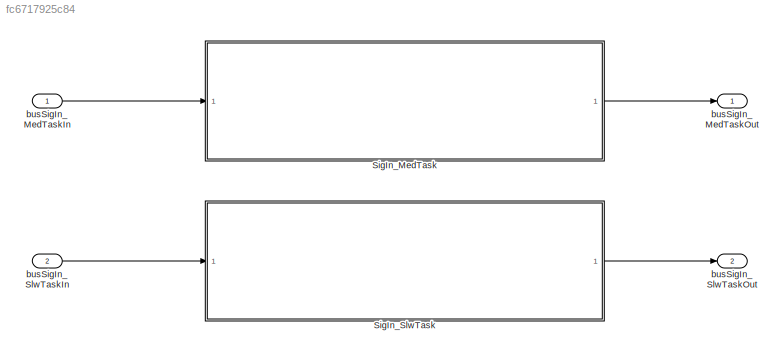
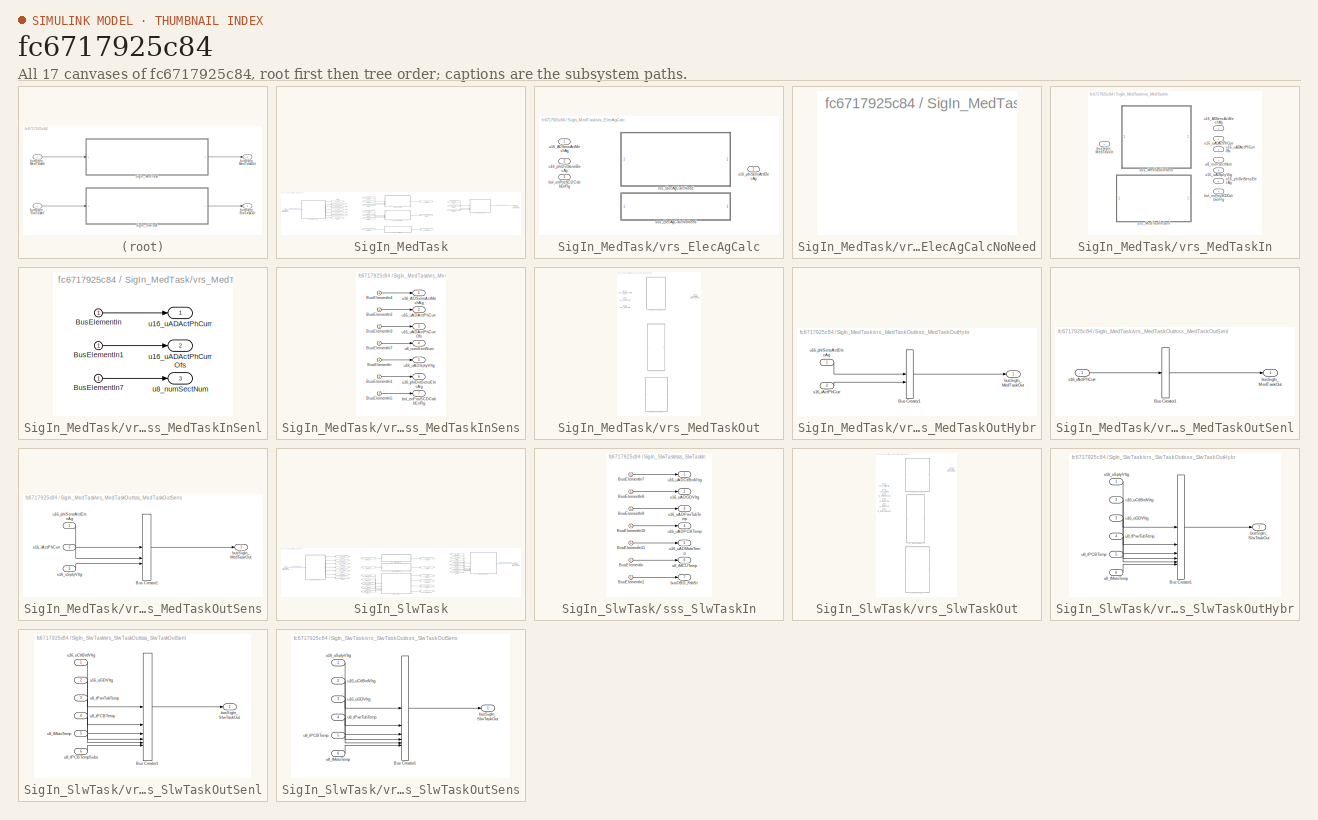
[diagram: thumbnail index - all 17 canvases of the model, root first then tree order]
MODEL slx_fc6717925c84
KIND model
CONFIG AbsTol = auto
CONFIG EnableMultiTasking = on
CONFIG FixedStep = 0.0005
CONFIG MaxStep = auto
CONFIG MinStep = auto
CONFIG RelTol = 1e-3
CONFIG SampleTimeConstraint = Unconstrained
CONFIG SolverName = FixedStepAuto
CONFIG StartTime = 0.0
CONFIG StopTime = 5
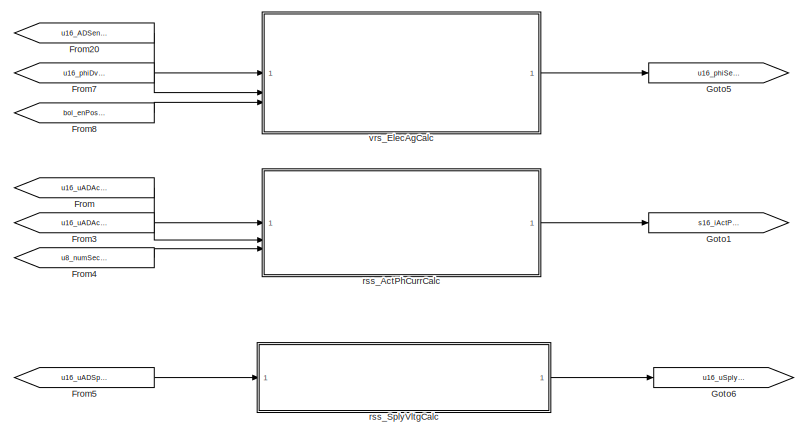
[diagram: SigIn_MedTask - part 1/3, center side, full height]
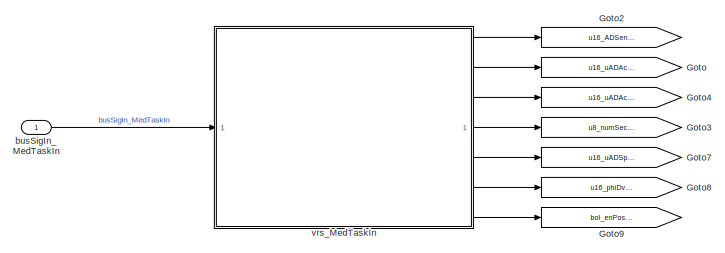
[diagram: SigIn_MedTask - part 2/3, middle left region]
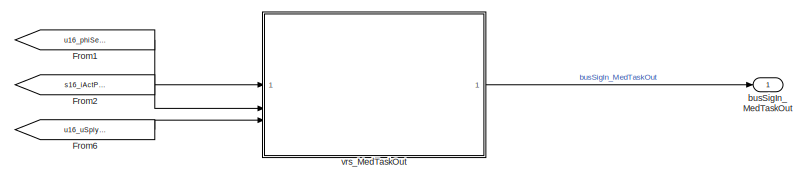
[diagram: SigIn_MedTask - part 3/3, top right region]
BLOCK [SubSystem] SigIn_MedTask
  RTWFcnName = SigIn_MedTask
  RTWFcnNameOpts = User specified
  RTWSystemCode = Nonreusable function
  TreatAsAtomicUnit = on
BLOCK [From] SigIn_MedTask/From
  GotoTag = u16_uADActPhCurr
BLOCK [From] SigIn_MedTask/From1
  GotoTag = u16_phiSensActElecAg
BLOCK [From] SigIn_MedTask/From2
  GotoTag = s16_iActPhCurr
BLOCK [From] SigIn_MedTask/From20
  GotoTag = u16_ADSensActMechAg
BLOCK [From] SigIn_MedTask/From3
  GotoTag = u16_uADActPhCurrOfs
BLOCK [From] SigIn_MedTask/From4
  GotoTag = u8_numSectNum
BLOCK [From] SigIn_MedTask/From5
  GotoTag = u16_uADSplyVltg
BLOCK [From] SigIn_MedTask/From6
  GotoTag = u16_uSplyVltg
BLOCK [From] SigIn_MedTask/From7
  GotoTag = u16_phiDvtSensElecAg
BLOCK [From] SigIn_MedTask/From8
  GotoTag = bol_enPosSCDCalibEnFlg
BLOCK [Goto] SigIn_MedTask/Goto
  GotoTag = u16_uADActPhCurr
BLOCK [Goto] SigIn_MedTask/Goto1
  GotoTag = s16_iActPhCurr
BLOCK [Goto] SigIn_MedTask/Goto2
  GotoTag = u16_ADSensActMechAg
BLOCK [Goto] SigIn_MedTask/Goto3
  GotoTag = u8_numSectNum
BLOCK [Goto] SigIn_MedTask/Goto4
  GotoTag = u16_uADActPhCurrOfs
BLOCK [Goto] SigIn_MedTask/Goto5
  GotoTag = u16_phiSensActElecAg
BLOCK [Goto] SigIn_MedTask/Goto6
  GotoTag = u16_uSplyVltg
BLOCK [Goto] SigIn_MedTask/Goto7
  GotoTag = u16_uADSplyVltg
BLOCK [Goto] SigIn_MedTask/Goto8
  GotoTag = u16_phiDvtSensElecAg
BLOCK [Goto] SigIn_MedTask/Goto9
  GotoTag = bol_enPosSCDCalibEnFlg
BLOCK [Inport] SigIn_MedTask/busSigIn_MedTaskIn
  SamplingMode = Sample based
  SignalType = real
BLOCK [Outport] SigIn_MedTask/busSigIn_MedTaskOut
  SamplingMode = Sample based
  SignalType = real
BLOCK [SubSystem] SigIn_MedTask/rss_ActPhCurrCalc
  ReferencedSubsystem = rss_ActPhCurrCalc
BLOCK [SubSystem] SigIn_MedTask/rss_SplyVltgCalc
  ReferencedSubsystem = rss_SplyVltgCalc
BLOCK [SubSystem] SigIn_MedTask/vrs_ElecAgCalc
  LabelModeActiveChoice = cstSensCtrlLbl
  Variant = on
  VariantControl = Choice
  VariantControlMode = label
BLOCK [Inport] SigIn_MedTask/vrs_ElecAgCalc/bol_enPosSCDCalibEnFlg
  Port = 3
BLOCK [SubSystem] SigIn_MedTask/vrs_ElecAgCalc/rss_ElecAgCalcNeed
  ReferencedSubsystem = rss_ElecAgCalcNeed
  VariantControl = cstSensCtrlLbl
BLOCK [SubSystem] SigIn_MedTask/vrs_ElecAgCalc/sss_ElecAgCalcNoNeed
  VariantControl = cstSenlCtrlLbl
BLOCK [Inport] SigIn_MedTask/vrs_ElecAgCalc/u16_ADSensActMechAg
BLOCK [Inport] SigIn_MedTask/vrs_ElecAgCalc/u16_phiDvtSensElecAg
  Port = 2
BLOCK [Outport] SigIn_MedTask/vrs_ElecAgCalc/u16_phiSensActElecAg
BLOCK [SubSystem] SigIn_MedTask/vrs_MedTaskIn
  LabelModeActiveChoice = cstSensCtrlLbl
  Variant = on
  VariantControl = cstSenlCtrlLbl
  VariantControlMode = label
BLOCK [Outport] SigIn_MedTask/vrs_MedTaskIn/bol_enPosSCDCalibEnFlg
  Port = 7
BLOCK [Inport] SigIn_MedTask/vrs_MedTaskIn/busSigIn_MedTaskIn
BLOCK [SubSystem] SigIn_MedTask/vrs_MedTaskIn/sss_MedTaskInSenl
  VariantControl = cstSenlCtrlLbl
BLOCK [Inport] SigIn_MedTask/vrs_MedTaskIn/sss_MedTaskInSenl/BusElementIn
BLOCK [Inport] SigIn_MedTask/vrs_MedTaskIn/sss_MedTaskInSenl/BusElementIn1
BLOCK [Inport] SigIn_MedTask/vrs_MedTaskIn/sss_MedTaskInSenl/BusElementIn7
BLOCK [Outport] SigIn_MedTask/vrs_MedTaskIn/sss_MedTaskInSenl/u16_uADActPhCurr
BLOCK [Outport] SigIn_MedTask/vrs_MedTaskIn/sss_MedTaskInSenl/u16_uADActPhCurrOfs
  Port = 2
BLOCK [Outport] SigIn_MedTask/vrs_MedTaskIn/sss_MedTaskInSenl/u8_numSectNum
  Port = 3
BLOCK [SubSystem] SigIn_MedTask/vrs_MedTaskIn/sss_MedTaskInSens
  VariantControl = cstSensCtrlLbl
BLOCK [Inport] SigIn_MedTask/vrs_MedTaskIn/sss_MedTaskInSens/BusElementIn
BLOCK [Inport] SigIn_MedTask/vrs_MedTaskIn/sss_MedTaskInSens/BusElementIn1
BLOCK [Inport] SigIn_MedTask/vrs_MedTaskIn/sss_MedTaskInSens/BusElementIn2
BLOCK [Inport] SigIn_MedTask/vrs_MedTaskIn/sss_MedTaskInSens/BusElementIn3
BLOCK [Inport] SigIn_MedTask/vrs_MedTaskIn/sss_MedTaskInSens/BusElementIn4
BLOCK [Inport] SigIn_MedTask/vrs_MedTaskIn/sss_MedTaskInSens/BusElementIn5
BLOCK [Inport] SigIn_MedTask/vrs_MedTaskIn/sss_MedTaskInSens/BusElementIn7
BLOCK [Outport] SigIn_MedTask/vrs_MedTaskIn/sss_MedTaskInSens/bol_enPosSCDCalibEnFlg
  Port = 7
BLOCK [Outport] SigIn_MedTask/vrs_MedTaskIn/sss_MedTaskInSens/u16_ADSensActMechAg
BLOCK [Outport] SigIn_MedTask/vrs_MedTaskIn/sss_MedTaskInSens/u16_phiDvtSensElecAg
  Port = 6
BLOCK [Outport] SigIn_MedTask/vrs_MedTaskIn/sss_MedTaskInSens/u16_uADActPhCurr
  Port = 2
BLOCK [Outport] SigIn_MedTask/vrs_MedTaskIn/sss_MedTaskInSens/u16_uADActPhCurrOfs
  Port = 3
BLOCK [Outport] SigIn_MedTask/vrs_MedTaskIn/sss_MedTaskInSens/u16_uADSplyVltg
  Port = 5
BLOCK [Outport] SigIn_MedTask/vrs_MedTaskIn/sss_MedTaskInSens/u8_numSectNum
  Port = 4
BLOCK [Outport] SigIn_MedTask/vrs_MedTaskIn/u16_ADSensActMechAg
BLOCK [Outport] SigIn_MedTask/vrs_MedTaskIn/u16_phiDvtSensElecAg
  Port = 6
BLOCK [Outport] SigIn_MedTask/vrs_MedTaskIn/u16_uADActPhCurr
  Port = 2
BLOCK [Outport] SigIn_MedTask/vrs_MedTaskIn/u16_uADActPhCurrOfs
  Port = 3
BLOCK [Outport] SigIn_MedTask/vrs_MedTaskIn/u16_uADSplyVltg
  Port = 5
BLOCK [Outport] SigIn_MedTask/vrs_MedTaskIn/u8_numSectNum
  Port = 4
BLOCK [SubSystem] SigIn_MedTask/vrs_MedTaskOut
  LabelModeActiveChoice = cstSensCtrlLbl
  Variant = on
  VariantControl = Choice
  VariantControlMode = label
BLOCK [Outport] SigIn_MedTask/vrs_MedTaskOut/busSigIn_MedTaskOut
BLOCK [Inport] SigIn_MedTask/vrs_MedTaskOut/s16_iActPhCurr
  Port = 2
BLOCK [SubSystem] SigIn_MedTask/vrs_MedTaskOut/sss_MedTaskOutHybr
  VariantControl = cstHybrCtrlLbl
BLOCK [BusCreator] SigIn_MedTask/vrs_MedTaskOut/sss_MedTaskOutHybr/Bus Creator1
  DisplayOption = bar
  InheritFromInputs = off
  Inputs = 2
  NonVirtualBus = on
  OutDataTypeStr = Bus: BUS_SIGIN_MED_TASK_OUT
BLOCK [Outport] SigIn_MedTask/vrs_MedTaskOut/sss_MedTaskOutHybr/busSigIn_MedTaskOut
BLOCK [Inport] SigIn_MedTask/vrs_MedTaskOut/sss_MedTaskOutHybr/s16_iActPhCurr
  Port = 2
BLOCK [Inport] SigIn_MedTask/vrs_MedTaskOut/sss_MedTaskOutHybr/u16_phiSensActElecAg
BLOCK [SubSystem] SigIn_MedTask/vrs_MedTaskOut/sss_MedTaskOutSenl
  VariantControl = cstSenlCtrlLbl
BLOCK [BusCreator] SigIn_MedTask/vrs_MedTaskOut/sss_MedTaskOutSenl/Bus Creator1
  DisplayOption = bar
  InheritFromInputs = off
  Inputs = 1
  NonVirtualBus = on
  OutDataTypeStr = Bus: BUS_SIGIN_MED_TASK_OUT
BLOCK [Outport] SigIn_MedTask/vrs_MedTaskOut/sss_MedTaskOutSenl/busSigIn_MedTaskOut
BLOCK [Inport] SigIn_MedTask/vrs_MedTaskOut/sss_MedTaskOutSenl/s16_iActPhCurr
BLOCK [SubSystem] SigIn_MedTask/vrs_MedTaskOut/sss_MedTaskOutSens
  VariantControl = cstSensCtrlLbl
BLOCK [BusCreator] SigIn_MedTask/vrs_MedTaskOut/sss_MedTaskOutSens/Bus Creator1
  DisplayOption = bar
  InheritFromInputs = off
  Inputs = 3
  NonVirtualBus = on
  OutDataTypeStr = Bus: BUS_SIGIN_MED_TASK_OUT
BLOCK [Outport] SigIn_MedTask/vrs_MedTaskOut/sss_MedTaskOutSens/busSigIn_MedTaskOut
BLOCK [Inport] SigIn_MedTask/vrs_MedTaskOut/sss_MedTaskOutSens/s16_iActPhCurr
  Port = 2
BLOCK [Inport] SigIn_MedTask/vrs_MedTaskOut/sss_MedTaskOutSens/u16_phiSensActElecAg
BLOCK [Inport] SigIn_MedTask/vrs_MedTaskOut/sss_MedTaskOutSens/u16_uSplyVltg
  Port = 3
BLOCK [Inport] SigIn_MedTask/vrs_MedTaskOut/u16_phiSensActElecAg
BLOCK [Inport] SigIn_MedTask/vrs_MedTaskOut/u16_uSplyVltg
  Port = 3
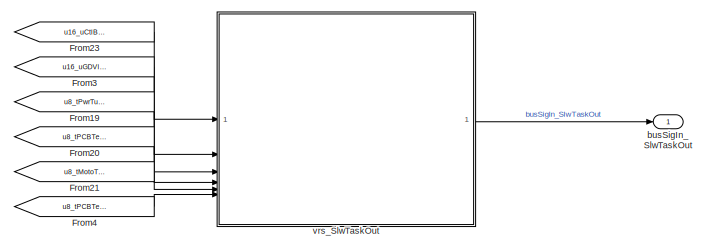
[diagram: SigIn_SlwTask - part 1/2, top right region]
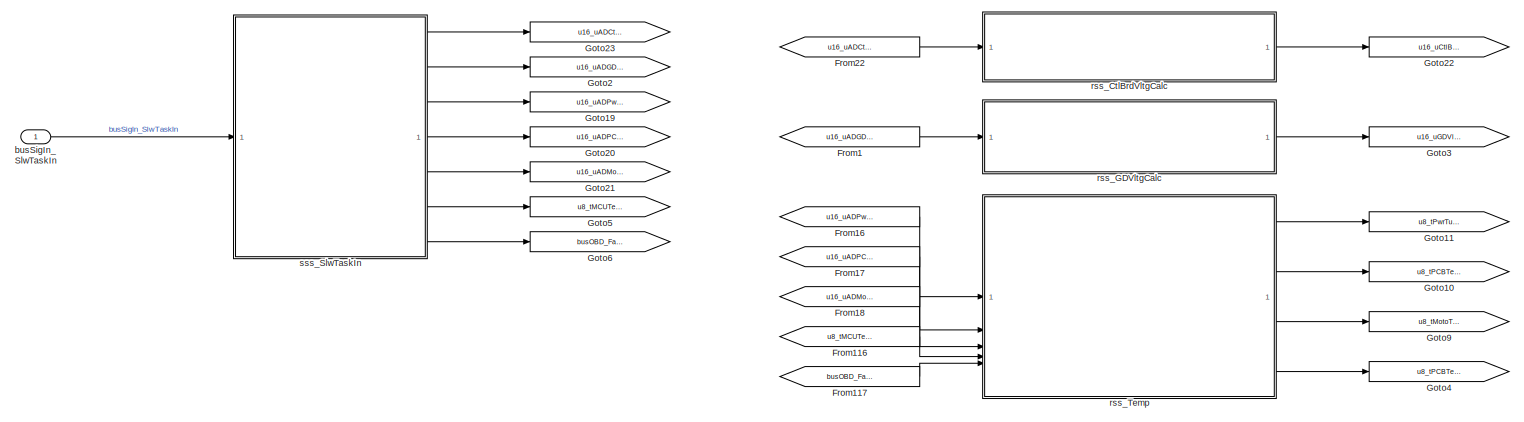
[diagram: SigIn_SlwTask - part 2/2, left side, full height]
BLOCK [SubSystem] SigIn_SlwTask
  RTWFcnName = SigIn_SlwTask
  RTWFcnNameOpts = User specified
  RTWSystemCode = Nonreusable function
  TreatAsAtomicUnit = on
BLOCK [From] SigIn_SlwTask/From1
  GotoTag = u16_uADGDVltg
BLOCK [From] SigIn_SlwTask/From116
  GotoTag = u8_tMCUTemp
BLOCK [From] SigIn_SlwTask/From117
  GotoTag = busOBD_FaltSt
BLOCK [From] SigIn_SlwTask/From16
  GotoTag = u16_uADPwrTubTemp
BLOCK [From] SigIn_SlwTask/From17
  GotoTag = u16_uADPCBTemp
BLOCK [From] SigIn_SlwTask/From18
  GotoTag = u16_uADMotoTemp
BLOCK [From] SigIn_SlwTask/From19
  GotoTag = u8_tPwrTubTemp
BLOCK [From] SigIn_SlwTask/From20
  GotoTag = u8_tPCBTemp
BLOCK [From] SigIn_SlwTask/From21
  GotoTag = u8_tMotoTemp
BLOCK [From] SigIn_SlwTask/From22
  GotoTag = u16_uADCtlBrdVltg
BLOCK [From] SigIn_SlwTask/From23
  GotoTag = u16_uCtlBrdVltg
BLOCK [From] SigIn_SlwTask/From3
  GotoTag = u16_uGDVltg
BLOCK [From] SigIn_SlwTask/From4
  GotoTag = u8_tPCBTempSubs
BLOCK [Goto] SigIn_SlwTask/Goto10
  GotoTag = u8_tPCBTemp
BLOCK [Goto] SigIn_SlwTask/Goto11
  GotoTag = u8_tPwrTubTemp
BLOCK [Goto] SigIn_SlwTask/Goto19
  GotoTag = u16_uADPwrTubTemp
BLOCK [Goto] SigIn_SlwTask/Goto2
  GotoTag = u16_uADGDVltg
BLOCK [Goto] SigIn_SlwTask/Goto20
  GotoTag = u16_uADPCBTemp
BLOCK [Goto] SigIn_SlwTask/Goto21
  GotoTag = u16_uADMotoTemp
BLOCK [Goto] SigIn_SlwTask/Goto22
  GotoTag = u16_uCtlBrdVltg
BLOCK [Goto] SigIn_SlwTask/Goto23
  GotoTag = u16_uADCtlBrdVltg
BLOCK [Goto] SigIn_SlwTask/Goto3
  GotoTag = u16_uGDVltg
BLOCK [Goto] SigIn_SlwTask/Goto4
  GotoTag = u8_tPCBTempSubs
BLOCK [Goto] SigIn_SlwTask/Goto5
  GotoTag = u8_tMCUTemp
BLOCK [Goto] SigIn_SlwTask/Goto6
  GotoTag = busOBD_FaltSt
BLOCK [Goto] SigIn_SlwTask/Goto9
  GotoTag = u8_tMotoTemp
BLOCK [Inport] SigIn_SlwTask/busSigIn_SlwTaskIn
  SamplingMode = Sample based
  SignalType = real
BLOCK [Outport] SigIn_SlwTask/busSigIn_SlwTaskOut
  SamplingMode = Sample based
  SignalType = real
BLOCK [SubSystem] SigIn_SlwTask/rss_CtlBrdVltgCalc
  ReferencedSubsystem = rss_CtlBrdVltgCalc
BLOCK [SubSystem] SigIn_SlwTask/rss_GDVltgCalc
  ReferencedSubsystem = rss_GDVltgCalc
BLOCK [SubSystem] SigIn_SlwTask/rss_Temp
  ReferencedSubsystem = rss_Temp
BLOCK [SubSystem] SigIn_SlwTask/sss_SlwTaskIn
  VariantControl = cstSenlCtrlLbl
BLOCK [Inport] SigIn_SlwTask/sss_SlwTaskIn/BusElementIn
BLOCK [Inport] SigIn_SlwTask/sss_SlwTaskIn/BusElementIn1
BLOCK [Inport] SigIn_SlwTask/sss_SlwTaskIn/BusElementIn10
BLOCK [Inport] SigIn_SlwTask/sss_SlwTaskIn/BusElementIn11
BLOCK [Inport] SigIn_SlwTask/sss_SlwTaskIn/BusElementIn7
BLOCK [Inport] SigIn_SlwTask/sss_SlwTaskIn/BusElementIn8
BLOCK [Inport] SigIn_SlwTask/sss_SlwTaskIn/BusElementIn9
BLOCK [Outport] SigIn_SlwTask/sss_SlwTaskIn/busOBD_FaltSt
  Port = 7
BLOCK [Outport] SigIn_SlwTask/sss_SlwTaskIn/u16_uADCtlBrdVltg
BLOCK [Outport] SigIn_SlwTask/sss_SlwTaskIn/u16_uADGDVltg
  Port = 2
BLOCK [Outport] SigIn_SlwTask/sss_SlwTaskIn/u16_uADMotoTemp
  Port = 5
BLOCK [Outport] SigIn_SlwTask/sss_SlwTaskIn/u16_uADPCBTemp
  Port = 4
BLOCK [Outport] SigIn_SlwTask/sss_SlwTaskIn/u16_uADPwrTubTemp
  Port = 3
BLOCK [Outport] SigIn_SlwTask/sss_SlwTaskIn/u8_tMCUTemp
  Port = 6
BLOCK [SubSystem] SigIn_SlwTask/vrs_SlwTaskOut
  LabelModeActiveChoice = cstSenlCtrlLbl
  Variant = on
  VariantControl = Choice
  VariantControlMode = label
BLOCK [Outport] SigIn_SlwTask/vrs_SlwTaskOut/busSigIn_SlwTaskOut
BLOCK [SubSystem] SigIn_SlwTask/vrs_SlwTaskOut/sss_SlwTaskOutHybr
  VariantControl = cstHybrCtrlLbl
BLOCK [BusCreator] SigIn_SlwTask/vrs_SlwTaskOut/sss_SlwTaskOutHybr/Bus Creator1
  DisplayOption = bar
  InheritFromInputs = off
  Inputs = 6
  NonVirtualBus = on
  OutDataTypeStr = Bus: BUS_SIGIN_SLW_TASK_OUT
BLOCK [Outport] SigIn_SlwTask/vrs_SlwTaskOut/sss_SlwTaskOutHybr/busSigIn_SlwTaskOut
BLOCK [Inport] SigIn_SlwTask/vrs_SlwTaskOut/sss_SlwTaskOutHybr/u16_uCtlBrdVltg
  Port = 2
BLOCK [Inport] SigIn_SlwTask/vrs_SlwTaskOut/sss_SlwTaskOutHybr/u16_uGDVltg
  Port = 3
BLOCK [Inport] SigIn_SlwTask/vrs_SlwTaskOut/sss_SlwTaskOutHybr/u16_uSplyVltg
BLOCK [Inport] SigIn_SlwTask/vrs_SlwTaskOut/sss_SlwTaskOutHybr/u8_tMotoTemp
  Port = 6
BLOCK [Inport] SigIn_SlwTask/vrs_SlwTaskOut/sss_SlwTaskOutHybr/u8_tPCBTemp
  Port = 5
BLOCK [Inport] SigIn_SlwTask/vrs_SlwTaskOut/sss_SlwTaskOutHybr/u8_tPwrTubTemp
  Port = 4
BLOCK [SubSystem] SigIn_SlwTask/vrs_SlwTaskOut/sss_SlwTaskOutSenl
  VariantControl = cstSenlCtrlLbl
BLOCK [BusCreator] SigIn_SlwTask/vrs_SlwTaskOut/sss_SlwTaskOutSenl/Bus Creator1
  DisplayOption = bar
  InheritFromInputs = off
  Inputs = 6
  NonVirtualBus = on
  OutDataTypeStr = Bus: BUS_SIGIN_SLW_TASK_OUT
BLOCK [Outport] SigIn_SlwTask/vrs_SlwTaskOut/sss_SlwTaskOutSenl/busSigIn_SlwTaskOut
BLOCK [Inport] SigIn_SlwTask/vrs_SlwTaskOut/sss_SlwTaskOutSenl/u16_uCtlBrdVltg
BLOCK [Inport] SigIn_SlwTask/vrs_SlwTaskOut/sss_SlwTaskOutSenl/u16_uGDVltg
  Port = 2
BLOCK [Inport] SigIn_SlwTask/vrs_SlwTaskOut/sss_SlwTaskOutSenl/u8_tMotoTemp
  Port = 5
BLOCK [Inport] SigIn_SlwTask/vrs_SlwTaskOut/sss_SlwTaskOutSenl/u8_tPCBTemp
  Port = 4
BLOCK [Inport] SigIn_SlwTask/vrs_SlwTaskOut/sss_SlwTaskOutSenl/u8_tPCBTempSubs
  Port = 6
BLOCK [Inport] SigIn_SlwTask/vrs_SlwTaskOut/sss_SlwTaskOutSenl/u8_tPwrTubTemp
  Port = 3
BLOCK [SubSystem] SigIn_SlwTask/vrs_SlwTaskOut/sss_SlwTaskOutSens
  VariantControl = cstSensCtrlLbl
BLOCK [BusCreator] SigIn_SlwTask/vrs_SlwTaskOut/sss_SlwTaskOutSens/Bus Creator1
  DisplayOption = bar
  InheritFromInputs = off
  Inputs = 6
  NonVirtualBus = on
  OutDataTypeStr = Bus: BUS_SIGIN_SLW_TASK_OUT
BLOCK [Outport] SigIn_SlwTask/vrs_SlwTaskOut/sss_SlwTaskOutSens/busSigIn_SlwTaskOut
BLOCK [Inport] SigIn_SlwTask/vrs_SlwTaskOut/sss_SlwTaskOutSens/u16_uCtlBrdVltg
  Port = 2
BLOCK [Inport] SigIn_SlwTask/vrs_SlwTaskOut/sss_SlwTaskOutSens/u16_uGDVltg
  Port = 3
BLOCK [Inport] SigIn_SlwTask/vrs_SlwTaskOut/sss_SlwTaskOutSens/u16_uSplyVltg
BLOCK [Inport] SigIn_SlwTask/vrs_SlwTaskOut/sss_SlwTaskOutSens/u8_tMotoTemp
  Port = 6
BLOCK [Inport] SigIn_SlwTask/vrs_SlwTaskOut/sss_SlwTaskOutSens/u8_tPCBTemp
  Port = 5
BLOCK [Inport] SigIn_SlwTask/vrs_SlwTaskOut/sss_SlwTaskOutSens/u8_tPwrTubTemp
  Port = 4
BLOCK [Inport] SigIn_SlwTask/vrs_SlwTaskOut/u16_uCtlBrdVltg
BLOCK [Inport] SigIn_SlwTask/vrs_SlwTaskOut/u16_uGDVltg
  Port = 2
BLOCK [Inport] SigIn_SlwTask/vrs_SlwTaskOut/u8_tMotoTemp
  Port = 5
BLOCK [Inport] SigIn_SlwTask/vrs_SlwTaskOut/u8_tPCBTemp
  Port = 4
BLOCK [Inport] SigIn_SlwTask/vrs_SlwTaskOut/u8_tPCBTempSubs
  Port = 6
BLOCK [Inport] SigIn_SlwTask/vrs_SlwTaskOut/u8_tPwrTubTemp
  Port = 3
BLOCK [Inport] busSigIn_MedTaskIn
  BusOutputAsStruct = on
  OutDataTypeStr = Bus: BUS_SIGIN_MED_TASK_IN
  SampleTime = round(double(Cdbl_tiMedTaskSmpTi),6)
  SamplingMode = Sample based
  SignalType = real
BLOCK [Outport] busSigIn_MedTaskOut
  OutDataTypeStr = Bus: BUS_SIGIN_MED_TASK_OUT
  SampleTime = round(double(Cdbl_tiMedTaskSmpTi),6)
  SamplingMode = Sample based
  SignalType = real
BLOCK [Inport] busSigIn_SlwTaskIn
  BusOutputAsStruct = on
  OutDataTypeStr = Bus: BUS_SIGIN_SLW_TASK_IN
  Port = 2
  SampleTime = round(double(Cdbl_tiSlwTaskSmpTi),4)
  SamplingMode = Sample based
  SignalType = real
BLOCK [Outport] busSigIn_SlwTaskOut
  OutDataTypeStr = Bus: BUS_SIGIN_SLW_TASK_OUT
  Port = 2
  SampleTime = round(double(Cdbl_tiSlwTaskSmpTi),4)
  SamplingMode = Sample based
  SignalType = real
LINE SigIn_MedTask/From1:1 -> SigIn_MedTask/vrs_MedTaskOut:1
LINE SigIn_MedTask/From20:1 -> SigIn_MedTask/vrs_ElecAgCalc:1
LINE SigIn_MedTask/From2:1 -> SigIn_MedTask/vrs_MedTaskOut:2
LINE SigIn_MedTask/From3:1 -> SigIn_MedTask/rss_ActPhCurrCalc:2
LINE SigIn_MedTask/From4:1 -> SigIn_MedTask/rss_ActPhCurrCalc:3
LINE SigIn_MedTask/From5:1 -> SigIn_MedTask/rss_SplyVltgCalc:1
LINE SigIn_MedTask/From6:1 -> SigIn_MedTask/vrs_MedTaskOut:3
LINE SigIn_MedTask/From7:1 -> SigIn_MedTask/vrs_ElecAgCalc:2
LINE SigIn_MedTask/From8:1 -> SigIn_MedTask/vrs_ElecAgCalc:3
LINE SigIn_MedTask/From:1 -> SigIn_MedTask/rss_ActPhCurrCalc:1
LINE SigIn_MedTask/busSigIn_MedTaskIn:1 -> SigIn_MedTask/vrs_MedTaskIn:1
LINE SigIn_MedTask/rss_ActPhCurrCalc:1 -> SigIn_MedTask/Goto1:1
LINE SigIn_MedTask/rss_SplyVltgCalc:1 -> SigIn_MedTask/Goto6:1
LINE SigIn_MedTask/vrs_ElecAgCalc:1 -> SigIn_MedTask/Goto5:1
LINE SigIn_MedTask/vrs_MedTaskIn/sss_MedTaskInSenl/BusElementIn1:1 -> SigIn_MedTask/vrs_MedTaskIn/sss_MedTaskInSenl/u16_uADActPhCurrOfs:1
LINE SigIn_MedTask/vrs_MedTaskIn/sss_MedTaskInSenl/BusElementIn7:1 -> SigIn_MedTask/vrs_MedTaskIn/sss_MedTaskInSenl/u8_numSectNum:1
LINE SigIn_MedTask/vrs_MedTaskIn/sss_MedTaskInSenl/BusElementIn:1 -> SigIn_MedTask/vrs_MedTaskIn/sss_MedTaskInSenl/u16_uADActPhCurr:1
LINE SigIn_MedTask/vrs_MedTaskIn/sss_MedTaskInSens/BusElementIn1:1 -> SigIn_MedTask/vrs_MedTaskIn/sss_MedTaskInSens/u16_phiDvtSensElecAg:1
LINE SigIn_MedTask/vrs_MedTaskIn/sss_MedTaskInSens/BusElementIn2:1 -> SigIn_MedTask/vrs_MedTaskIn/sss_MedTaskInSens/u16_uADActPhCurr:1
LINE SigIn_MedTask/vrs_MedTaskIn/sss_MedTaskInSens/BusElementIn3:1 -> SigIn_MedTask/vrs_MedTaskIn/sss_MedTaskInSens/u16_uADActPhCurrOfs:1
LINE SigIn_MedTask/vrs_MedTaskIn/sss_MedTaskInSens/BusElementIn4:1 -> SigIn_MedTask/vrs_MedTaskIn/sss_MedTaskInSens/u16_ADSensActMechAg:1
LINE SigIn_MedTask/vrs_MedTaskIn/sss_MedTaskInSens/BusElementIn5:1 -> SigIn_MedTask/vrs_MedTaskIn/sss_MedTaskInSens/bol_enPosSCDCalibEnFlg:1
LINE SigIn_MedTask/vrs_MedTaskIn/sss_MedTaskInSens/BusElementIn7:1 -> SigIn_MedTask/vrs_MedTaskIn/sss_MedTaskInSens/u8_numSectNum:1
LINE SigIn_MedTask/vrs_MedTaskIn/sss_MedTaskInSens/BusElementIn:1 -> SigIn_MedTask/vrs_MedTaskIn/sss_MedTaskInSens/u16_uADSplyVltg:1
LINE SigIn_MedTask/vrs_MedTaskIn:1 -> SigIn_MedTask/Goto2:1
LINE SigIn_MedTask/vrs_MedTaskIn:2 -> SigIn_MedTask/Goto:1
LINE SigIn_MedTask/vrs_MedTaskIn:3 -> SigIn_MedTask/Goto4:1
LINE SigIn_MedTask/vrs_MedTaskIn:4 -> SigIn_MedTask/Goto3:1
LINE SigIn_MedTask/vrs_MedTaskIn:5 -> SigIn_MedTask/Goto7:1
LINE SigIn_MedTask/vrs_MedTaskIn:6 -> SigIn_MedTask/Goto8:1
LINE SigIn_MedTask/vrs_MedTaskIn:7 -> SigIn_MedTask/Goto9:1
LINE SigIn_MedTask/vrs_MedTaskOut/sss_MedTaskOutHybr/Bus Creator1:1 -> SigIn_MedTask/vrs_MedTaskOut/sss_MedTaskOutHybr/busSigIn_MedTaskOut:1
LINE SigIn_MedTask/vrs_MedTaskOut/sss_MedTaskOutHybr/s16_iActPhCurr:1 -> SigIn_MedTask/vrs_MedTaskOut/sss_MedTaskOutHybr/Bus Creator1:2
LINE SigIn_MedTask/vrs_MedTaskOut/sss_MedTaskOutHybr/u16_phiSensActElecAg:1 -> SigIn_MedTask/vrs_MedTaskOut/sss_MedTaskOutHybr/Bus Creator1:1
LINE SigIn_MedTask/vrs_MedTaskOut/sss_MedTaskOutSenl/Bus Creator1:1 -> SigIn_MedTask/vrs_MedTaskOut/sss_MedTaskOutSenl/busSigIn_MedTaskOut:1
LINE SigIn_MedTask/vrs_MedTaskOut/sss_MedTaskOutSenl/s16_iActPhCurr:1 -> SigIn_MedTask/vrs_MedTaskOut/sss_MedTaskOutSenl/Bus Creator1:1
LINE SigIn_MedTask/vrs_MedTaskOut/sss_MedTaskOutSens/Bus Creator1:1 -> SigIn_MedTask/vrs_MedTaskOut/sss_MedTaskOutSens/busSigIn_MedTaskOut:1
LINE SigIn_MedTask/vrs_MedTaskOut/sss_MedTaskOutSens/s16_iActPhCurr:1 -> SigIn_MedTask/vrs_MedTaskOut/sss_MedTaskOutSens/Bus Creator1:2
LINE SigIn_MedTask/vrs_MedTaskOut/sss_MedTaskOutSens/u16_phiSensActElecAg:1 -> SigIn_MedTask/vrs_MedTaskOut/sss_MedTaskOutSens/Bus Creator1:1
LINE SigIn_MedTask/vrs_MedTaskOut/sss_MedTaskOutSens/u16_uSplyVltg:1 -> SigIn_MedTask/vrs_MedTaskOut/sss_MedTaskOutSens/Bus Creator1:3
LINE SigIn_MedTask/vrs_MedTaskOut:1 -> SigIn_MedTask/busSigIn_MedTaskOut:1
LINE SigIn_MedTask:1 -> busSigIn_MedTaskOut:1
LINE SigIn_SlwTask/From116:1 -> SigIn_SlwTask/rss_Temp:4
LINE SigIn_SlwTask/From117:1 -> SigIn_SlwTask/rss_Temp:5
LINE SigIn_SlwTask/From16:1 -> SigIn_SlwTask/rss_Temp:1
LINE SigIn_SlwTask/From17:1 -> SigIn_SlwTask/rss_Temp:2
LINE SigIn_SlwTask/From18:1 -> SigIn_SlwTask/rss_Temp:3
LINE SigIn_SlwTask/From19:1 -> SigIn_SlwTask/vrs_SlwTaskOut:3
LINE SigIn_SlwTask/From1:1 -> SigIn_SlwTask/rss_GDVltgCalc:1
LINE SigIn_SlwTask/From20:1 -> SigIn_SlwTask/vrs_SlwTaskOut:4
LINE SigIn_SlwTask/From21:1 -> SigIn_SlwTask/vrs_SlwTaskOut:5
LINE SigIn_SlwTask/From22:1 -> SigIn_SlwTask/rss_CtlBrdVltgCalc:1
LINE SigIn_SlwTask/From23:1 -> SigIn_SlwTask/vrs_SlwTaskOut:1
LINE SigIn_SlwTask/From3:1 -> SigIn_SlwTask/vrs_SlwTaskOut:2
LINE SigIn_SlwTask/From4:1 -> SigIn_SlwTask/vrs_SlwTaskOut:6
LINE SigIn_SlwTask/busSigIn_SlwTaskIn:1 -> SigIn_SlwTask/sss_SlwTaskIn:1
LINE SigIn_SlwTask/rss_CtlBrdVltgCalc:1 -> SigIn_SlwTask/Goto22:1
LINE SigIn_SlwTask/rss_GDVltgCalc:1 -> SigIn_SlwTask/Goto3:1
LINE SigIn_SlwTask/rss_Temp:1 -> SigIn_SlwTask/Goto11:1
LINE SigIn_SlwTask/rss_Temp:2 -> SigIn_SlwTask/Goto10:1
LINE SigIn_SlwTask/rss_Temp:3 -> SigIn_SlwTask/Goto9:1
LINE SigIn_SlwTask/rss_Temp:4 -> SigIn_SlwTask/Goto4:1
LINE SigIn_SlwTask/sss_SlwTaskIn/BusElementIn10:1 -> SigIn_SlwTask/sss_SlwTaskIn/u16_uADPCBTemp:1
LINE SigIn_SlwTask/sss_SlwTaskIn/BusElementIn11:1 -> SigIn_SlwTask/sss_SlwTaskIn/u16_uADMotoTemp:1
LINE SigIn_SlwTask/sss_SlwTaskIn/BusElementIn1:1 -> SigIn_SlwTask/sss_SlwTaskIn/busOBD_FaltSt:1
LINE SigIn_SlwTask/sss_SlwTaskIn/BusElementIn7:1 -> SigIn_SlwTask/sss_SlwTaskIn/u16_uADCtlBrdVltg:1
LINE SigIn_SlwTask/sss_SlwTaskIn/BusElementIn8:1 -> SigIn_SlwTask/sss_SlwTaskIn/u16_uADGDVltg:1
LINE SigIn_SlwTask/sss_SlwTaskIn/BusElementIn9:1 -> SigIn_SlwTask/sss_SlwTaskIn/u16_uADPwrTubTemp:1
LINE SigIn_SlwTask/sss_SlwTaskIn/BusElementIn:1 -> SigIn_SlwTask/sss_SlwTaskIn/u8_tMCUTemp:1
LINE SigIn_SlwTask/sss_SlwTaskIn:1 -> SigIn_SlwTask/Goto23:1
LINE SigIn_SlwTask/sss_SlwTaskIn:2 -> SigIn_SlwTask/Goto2:1
LINE SigIn_SlwTask/sss_SlwTaskIn:3 -> SigIn_SlwTask/Goto19:1
LINE SigIn_SlwTask/sss_SlwTaskIn:4 -> SigIn_SlwTask/Goto20:1
LINE SigIn_SlwTask/sss_SlwTaskIn:5 -> SigIn_SlwTask/Goto21:1
LINE SigIn_SlwTask/sss_SlwTaskIn:6 -> SigIn_SlwTask/Goto5:1
LINE SigIn_SlwTask/sss_SlwTaskIn:7 -> SigIn_SlwTask/Goto6:1
LINE SigIn_SlwTask/vrs_SlwTaskOut/sss_SlwTaskOutHybr/Bus Creator1:1 -> SigIn_SlwTask/vrs_SlwTaskOut/sss_SlwTaskOutHybr/busSigIn_SlwTaskOut:1
LINE SigIn_SlwTask/vrs_SlwTaskOut/sss_SlwTaskOutHybr/u16_uCtlBrdVltg:1 -> SigIn_SlwTask/vrs_SlwTaskOut/sss_SlwTaskOutHybr/Bus Creator1:2
LINE SigIn_SlwTask/vrs_SlwTaskOut/sss_SlwTaskOutHybr/u16_uGDVltg:1 -> SigIn_SlwTask/vrs_SlwTaskOut/sss_SlwTaskOutHybr/Bus Creator1:3
LINE SigIn_SlwTask/vrs_SlwTaskOut/sss_SlwTaskOutHybr/u16_uSplyVltg:1 -> SigIn_SlwTask/vrs_SlwTaskOut/sss_SlwTaskOutHybr/Bus Creator1:1
LINE SigIn_SlwTask/vrs_SlwTaskOut/sss_SlwTaskOutHybr/u8_tMotoTemp:1 -> SigIn_SlwTask/vrs_SlwTaskOut/sss_SlwTaskOutHybr/Bus Creator1:6
LINE SigIn_SlwTask/vrs_SlwTaskOut/sss_SlwTaskOutHybr/u8_tPCBTemp:1 -> SigIn_SlwTask/vrs_SlwTaskOut/sss_SlwTaskOutHybr/Bus Creator1:5
LINE SigIn_SlwTask/vrs_SlwTaskOut/sss_SlwTaskOutHybr/u8_tPwrTubTemp:1 -> SigIn_SlwTask/vrs_SlwTaskOut/sss_SlwTaskOutHybr/Bus Creator1:4
LINE SigIn_SlwTask/vrs_SlwTaskOut/sss_SlwTaskOutSenl/Bus Creator1:1 -> SigIn_SlwTask/vrs_SlwTaskOut/sss_SlwTaskOutSenl/busSigIn_SlwTaskOut:1
LINE SigIn_SlwTask/vrs_SlwTaskOut/sss_SlwTaskOutSenl/u16_uCtlBrdVltg:1 -> SigIn_SlwTask/vrs_SlwTaskOut/sss_SlwTaskOutSenl/Bus Creator1:1
LINE SigIn_SlwTask/vrs_SlwTaskOut/sss_SlwTaskOutSenl/u16_uGDVltg:1 -> SigIn_SlwTask/vrs_SlwTaskOut/sss_SlwTaskOutSenl/Bus Creator1:2
LINE SigIn_SlwTask/vrs_SlwTaskOut/sss_SlwTaskOutSenl/u8_tMotoTemp:1 -> SigIn_SlwTask/vrs_SlwTaskOut/sss_SlwTaskOutSenl/Bus Creator1:5
LINE SigIn_SlwTask/vrs_SlwTaskOut/sss_SlwTaskOutSenl/u8_tPCBTemp:1 -> SigIn_SlwTask/vrs_SlwTaskOut/sss_SlwTaskOutSenl/Bus Creator1:4
LINE SigIn_SlwTask/vrs_SlwTaskOut/sss_SlwTaskOutSenl/u8_tPCBTempSubs:1 -> SigIn_SlwTask/vrs_SlwTaskOut/sss_SlwTaskOutSenl/Bus Creator1:6
LINE SigIn_SlwTask/vrs_SlwTaskOut/sss_SlwTaskOutSenl/u8_tPwrTubTemp:1 -> SigIn_SlwTask/vrs_SlwTaskOut/sss_SlwTaskOutSenl/Bus Creator1:3
LINE SigIn_SlwTask/vrs_SlwTaskOut/sss_SlwTaskOutSens/Bus Creator1:1 -> SigIn_SlwTask/vrs_SlwTaskOut/sss_SlwTaskOutSens/busSigIn_SlwTaskOut:1
LINE SigIn_SlwTask/vrs_SlwTaskOut/sss_SlwTaskOutSens/u16_uCtlBrdVltg:1 -> SigIn_SlwTask/vrs_SlwTaskOut/sss_SlwTaskOutSens/Bus Creator1:2
LINE SigIn_SlwTask/vrs_SlwTaskOut/sss_SlwTaskOutSens/u16_uGDVltg:1 -> SigIn_SlwTask/vrs_SlwTaskOut/sss_SlwTaskOutSens/Bus Creator1:3
LINE SigIn_SlwTask/vrs_SlwTaskOut/sss_SlwTaskOutSens/u16_uSplyVltg:1 -> SigIn_SlwTask/vrs_SlwTaskOut/sss_SlwTaskOutSens/Bus Creator1:1
LINE SigIn_SlwTask/vrs_SlwTaskOut/sss_SlwTaskOutSens/u8_tMotoTemp:1 -> SigIn_SlwTask/vrs_SlwTaskOut/sss_SlwTaskOutSens/Bus Creator1:6
LINE SigIn_SlwTask/vrs_SlwTaskOut/sss_SlwTaskOutSens/u8_tPCBTemp:1 -> SigIn_SlwTask/vrs_SlwTaskOut/sss_SlwTaskOutSens/Bus Creator1:5
LINE SigIn_SlwTask/vrs_SlwTaskOut/sss_SlwTaskOutSens/u8_tPwrTubTemp:1 -> SigIn_SlwTask/vrs_SlwTaskOut/sss_SlwTaskOutSens/Bus Creator1:4
LINE SigIn_SlwTask/vrs_SlwTaskOut:1 -> SigIn_SlwTask/busSigIn_SlwTaskOut:1
LINE SigIn_SlwTask:1 -> busSigIn_SlwTaskOut:1
LINE busSigIn_MedTaskIn:1 -> SigIn_MedTask:1
LINE busSigIn_SlwTaskIn:1 -> SigIn_SlwTask:1
